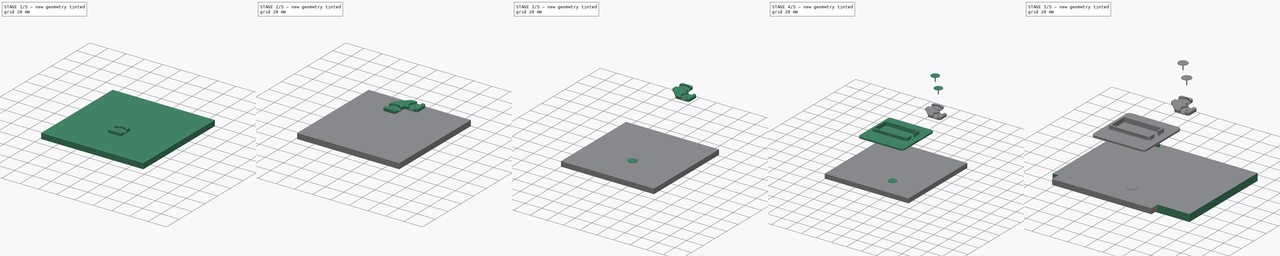
[diagram: build sequence overview — one tinted view per stage of 5, left to right]
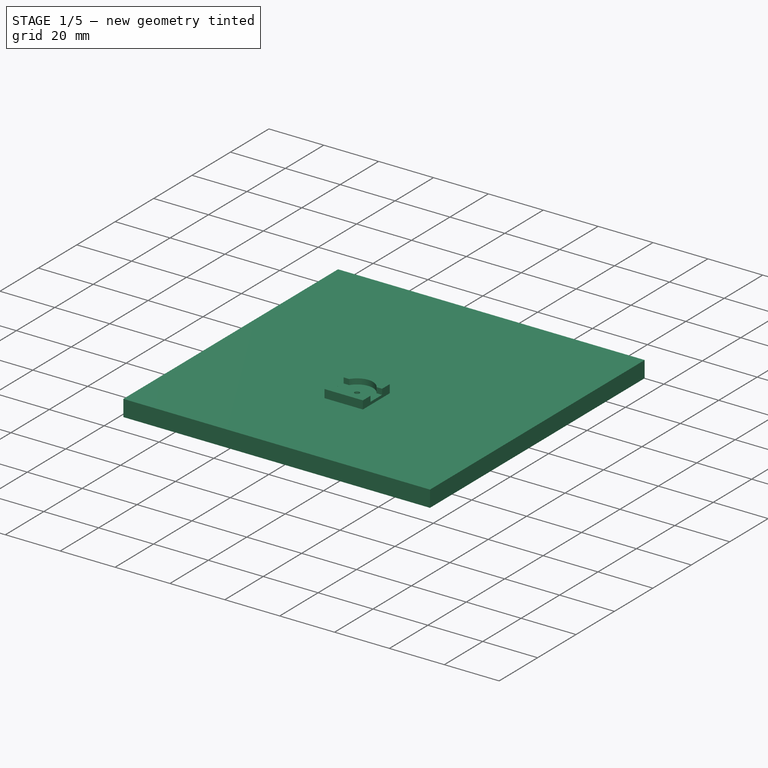
[diagram: stage 1 of 5 — iso view after this stage's code; geometry added in this stage tinted green]
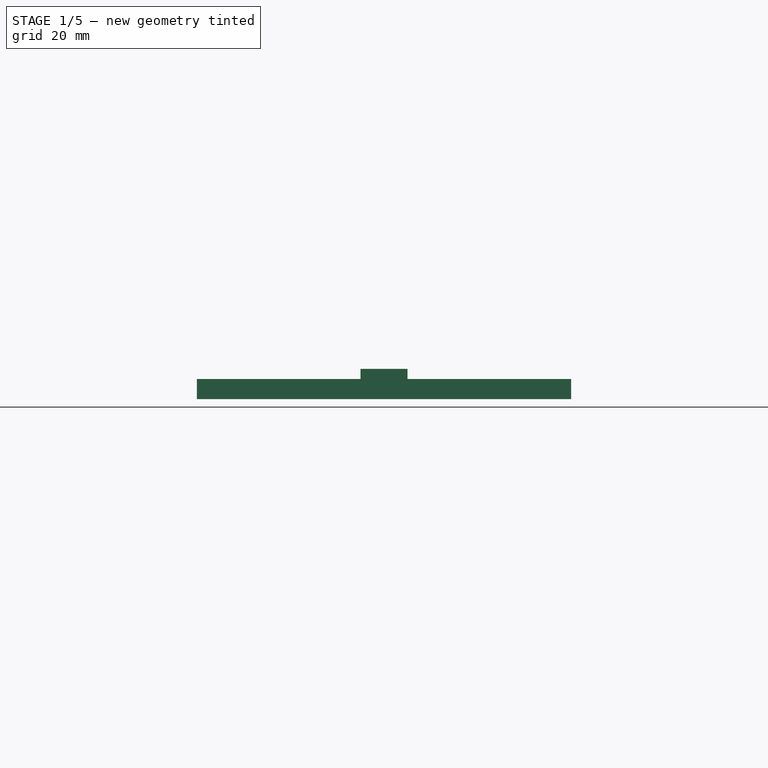
[diagram: stage 1 of 5 — front view after this stage's code; geometry added in this stage tinted green]
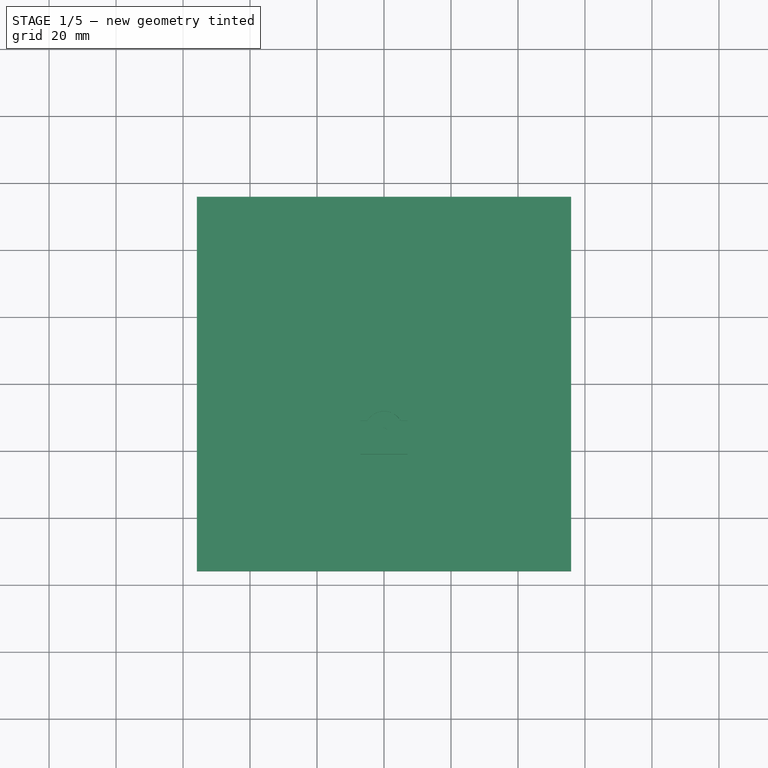
[diagram: stage 1 of 5 — top view after this stage's code; geometry added in this stage tinted green]
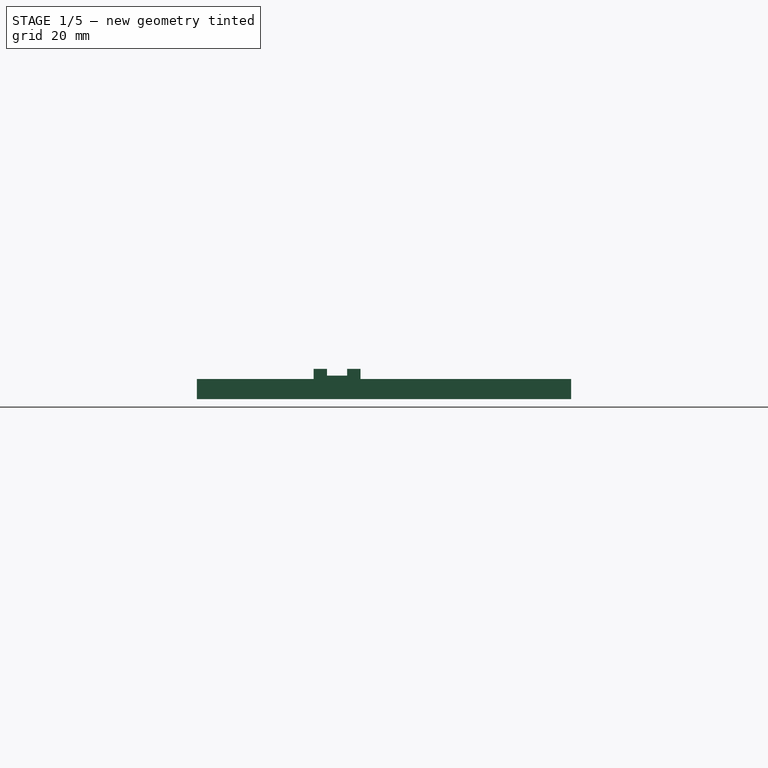
[diagram: stage 1 of 5 — right view after this stage's code; geometry added in this stage tinted green]
FCSTD DOCUMENT  (FreeCAD 0.16R6707 (Git))
Label: corner-holder
License: All rights reserved
LicenseURL: http://en.wikipedia.org/wiki/All_rights_reserved
objects: Part::FeaturePython×17, Part::Part2DObjectPython×12, App::DocumentObjectGroup×9, Sketcher::SketchObject×7, Part::Feature×5, PartDesign::Pad×4, App::Annotation×4, PartDesign::Pocket×3, Part::MultiFuse×2, Part::Fillet×2, Part::Compound×1
note: 60 computed .brp shape members not serialized (recipe doc carries the construction recipe); baked Part::Feature solids carry a one-line shape summary decoded from their .brp

FEATURE [Sketcher::SketchObject] Sketch006  label="pp-unit-body-sketch"
  sketch-geometry (4):
    g0: LineSegment StartX=-7 StartY=7 StartZ=0 EndX=7 EndY=7 EndZ=0
    g1: LineSegment StartX=7 StartY=7 StartZ=0 EndX=7 EndY=-7 EndZ=0
    g2: LineSegment StartX=7 StartY=-7 StartZ=0 EndX=-7 EndY=-7 EndZ=0
    g3: LineSegment StartX=-7 StartY=-7 StartZ=0 EndX=-7 EndY=7 EndZ=0
  constraints (11):
    c: Coincident(g0,g1)
    c: Coincident(g1,g2)
    c: Coincident(g2,g3)
    c: Coincident(g3,g0)
    c: Horizontal(g0)
    c: Horizontal(g2)
    c: Vertical(g1)
    c: Vertical(g3)
    c: Symmetric(g0,g1,g-1)
    c: Equal(g3,g0)
    c: DistanceX(g0,g0) = 14
FEATURE [PartDesign::Pad] Pad002  label="push-pin-unit-body"
  Length = 3
  Length2 = 100
  Sketch = -> Sketch006
  Type = 0
FEATURE [Sketcher::SketchObject] Sketch007  label="pushpin-top-cutout-sketch"
  ExternalGeometry = -> [Pad002]
  Placement = pos=(0,0,3) rot=(0,0,1;0rad)
  Support = -> Pad002 [Face6]
  sketch-geometry (8):
    g0: LineSegment StartX=-3 StartY=7 StartZ=0 EndX=-3 EndY=4.96387 EndZ=0
    g1: ArcOfCircle CenterX=0 CenterY=0 CenterZ=0 NormalX=0 NormalY=0 NormalZ=1 Radius=5.8 StartAngle=2.11442 EndAngle=4.16876
    g2: LineSegment StartX=-3 StartY=-7 StartZ=0 EndX=-3 EndY=-4.96387 EndZ=0
    g3: LineSegment StartX=-3 StartY=7 StartZ=0 EndX=3 EndY=7 EndZ=0
    g4: LineSegment StartX=3 StartY=7 StartZ=0 EndX=3 EndY=4.96387 EndZ=0
    g5: ArcOfCircle CenterX=0 CenterY=0 CenterZ=0 NormalX=0 NormalY=0 NormalZ=1 Radius=5.8 StartAngle=5.25601 EndAngle=7.31036
    g6: LineSegment StartX=3 StartY=-4.96387 StartZ=0 EndX=3 EndY=-7 EndZ=0
    g7: LineSegment StartX=3 StartY=-7 StartZ=0 EndX=-3 EndY=-7 EndZ=0
  constraints (23):
    c: Radius(g1) = 5.8
    c: Coincident(g1,g0)
    c: Coincident(g1,g-1)
    c: PointOnObject(g1,g0)
    c: Vertical(g2)
    c: Coincident(g2,g1)
    c: Coincident(g0,g3)
    c: Horizontal(g3)
    c: Coincident(g3,g4)
    c: Vertical(g4)
    c: PointOnObject(g0,g-3)
    c: DistanceX(g0,g3) = 6
    c: Symmetric(g2,g0,g-1)
    c: Symmetric(g0,g3,g-2)
    c: Coincident(g5,g-1)
    c: Coincident(g4,g5)
    c: Symmetric(g0,g4,g-2)
    c: Vertical(g6)
    c: Coincident(g6,g7)
    c: Horizontal(g7)
    c: Coincident(g7,g2)
    c: Coincident(g6,g5)
    c: Symmetric(g6,g2,g-2)
FEATURE [PartDesign::Pocket] Pocket004  label="pushpin-top-cutout"
  Length = 2
  Sketch = -> Sketch007
  Type = 0
FEATURE [Sketcher::SketchObject] Sketch008  label="pushpin-hole-sketch"
  Placement = pos=(0,0,1) rot=(0,0,1;0rad)
  Support = -> Pocket004 [Face6]
  sketch-geometry (1):
    g0: Circle CenterX=0 CenterY=0 CenterZ=0 NormalX=0 NormalY=0 NormalZ=1 Radius=0.9
  constraints (2):
    c: Coincident(g0,g-1)
    c: Radius(g0) = 0.9
FEATURE [PartDesign::Pocket] Pocket005  label="pushpin-hole"
  Length = 5
  Sketch = -> Sketch008
  Type = 1
FEATURE [App::DocumentObjectGroup] Grupo008  label="Single1"
  Group = -> [Clone001004,Compound002002002]
FEATURE [Part::FeaturePython] Clone001005  label="pushpin-unit001"  # Draft clone (typed FeaturePython)
  Objects = -> [Pocket005]
  Placement = pos=(14,0,0) rot=(0,0,1;0rad)
  Scale = (1,1,1)
FEATURE [Part::FeaturePython] Clone001007  label="pushpin-unit003"  # Draft clone (typed FeaturePython)
  Objects = -> [Clone001005]
  Placement = pos=(0,-14,0) rot=(0,0,1;1.5708rad)
  Scale = (1,1,1)
FEATURE [Sketcher::SketchObject] Sketch011  label="board-sketch"
  Placement = pos=(0,0,-6) rot=(0,0,1;0rad)
  sketch-geometry (4):
    g0: LineSegment StartX=-55.8818 StartY=55.8818 StartZ=0 EndX=55.8818 EndY=55.8818 EndZ=0
    g1: LineSegment StartX=55.8818 StartY=55.8818 StartZ=0 EndX=55.8818 EndY=-55.8818 EndZ=0
    g2: LineSegment StartX=55.8818 StartY=-55.8818 StartZ=0 EndX=-55.8818 EndY=-55.8818 EndZ=0
    g3: LineSegment StartX=-55.8818 StartY=-55.8818 StartZ=0 EndX=-55.8818 EndY=55.8818 EndZ=0
  constraints (10):
    c: Coincident(g0,g1)
    c: Coincident(g1,g2)
    c: Coincident(g2,g3)
    c: Coincident(g3,g0)
    c: Horizontal(g0)
    c: Horizontal(g2)
    c: Vertical(g1)
    c: Vertical(g3)
    c: Symmetric(g0,g1,g-1)
    c: Equal(g3,g0)
FEATURE [PartDesign::Pad] Pad004  label="board001"
  Length = 6
  Length2 = 100
  Placement = pos=(0,0,-6) rot=(0,0,1;0rad)
  Sketch = -> Sketch011
  Type = 0
FEATURE [Part::Part2DObjectPython] Line  # Draft 2D object (typed FeaturePython)
  ChamferSize = 0
  Closed = false
  End = (25,39,0)
  FilletRadius = 0
  Length = 95.2
  MakeFace = true
  Points = (2) [(25,39,95.2),(25,39,0)]
  Start = (25,39,95.2)
  Subdivisions = 0
FEATURE [Part::Part2DObjectPython] Line001  # Draft 2D object (typed FeaturePython)
  ChamferSize = 0
  Closed = false
  End = (39,25,0)
  FilletRadius = 0
  Length = 89.2001
  MakeFace = true
  Points = (2) [(39.1,25,89.2),(39,25,0)]
  Start = (39.1,25,89.2)
  Subdivisions = 0
FEATURE [Part::Part2DObjectPython] Line002  # Draft 2D object (typed FeaturePython)
  ChamferSize = 0
  Closed = false
  End = (24,24,42)
  FilletRadius = 0
  Length = 24
  MakeFace = true
  Points = (2) [(24,24,66),(24,24,42)]
  Start = (24,24,66)
  Subdivisions = 0
  Support = -> Clone001018
FEATURE [Part::Part2DObjectPython] Line004  # Draft 2D object (typed FeaturePython)
  ChamferSize = 0
  Closed = false
  End = (0,0,42)
  FilletRadius = 0
  Length = 42
  MakeFace = true
  Points = (2) [(-4.44089e-16,0,0),(0,0,42)]
  Start = (0,0,0)
  Subdivisions = 0
  Support = -> Pad004
FEATURE [Part::Part2DObjectPython] DWire  # Draft 2D object (typed FeaturePython)
  ChamferSize = 0
  Closed = false
  End = (91,0,10)
  FilletRadius = 0
  Length = 35.0416
  MakeFace = true
  Placement = pos=(21,0,21) rot=(0,0,1;0rad)
  Points = (3) [(39,0,-20),(62,0,-20),(70,0,-11)]
  Start = (60,0,1)
  Subdivisions = 0
FEATURE [App::Annotation] Text
  LabelText = 4
  Position = (92.006,0,12.5015)
FEATURE [Part::Part2DObjectPython] Circle  # Draft 2D object (typed FeaturePython)
  FirstAngle = 0
  LastAngle = 0
  MakeFace = false
  Placement = pos=(95,0,16) rot=(1,0,0;1.5708rad)
  Radius = 7.2111
FEATURE [App::Annotation] Text001
  LabelText = 3
  Position = (-54.4955,0,55)
FEATURE [Part::Part2DObjectPython] Circle001  # Draft 2D object (typed FeaturePython)
  FirstAngle = 0
  LastAngle = 0
  MakeFace = false
  Placement = pos=(-52,0,58) rot=(1,0,0;1.5708rad)
  Radius = 7.2111
FEATURE [Part::Part2DObjectPython] DWire001  # Draft 2D object (typed FeaturePython)
  ChamferSize = 0
  Closed = false
  End = (-49.392,0,50.6632)
  FilletRadius = 0
  Length = 23.713
  MakeFace = true
  Points = (3) [(-31,0,42),(-45,0,42),(-49.392,0,50.6632)]
  Start = (-31,0,42)
  Subdivisions = 0
FEATURE [Part::Part2DObjectPython] Circle002  # Draft 2D object (typed FeaturePython)
  FirstAngle = 0
  LastAngle = 0
  MakeFace = false
  Placement = pos=(-8,32,79) rot=(1,0,0;1.5708rad)
  Radius = 7.2111
FEATURE [App::Annotation] Text002
  LabelText = 2
  Position = (-10.4955,32,75.5015)
FEATURE [Part::Part2DObjectPython] DWire002  # Draft 2D object (typed FeaturePython)
  ChamferSize = 0
  Closed = false
  End = (-5.39205,32,71.6632)
  FilletRadius = 0
  Length = 23.713
  MakeFace = true
  Placement = pos=(44,32,21) rot=(0,0,1;0rad)
  Points = (3) [(-31,0,42),(-45,0,42),(-49.392,0,50.6632)]
  Start = (13,32,63)
  Subdivisions = 0
FEATURE [Part::Part2DObjectPython] Circle003  # Draft 2D object (typed FeaturePython)
  FirstAngle = 0
  LastAngle = 0
  MakeFace = false
  Placement = pos=(-6.56213,39,118.325) rot=(1,0,0;1.5708rad)
  Radius = 7.2111
FEATURE [App::Annotation] Text003
  LabelText = 1
  Position = (-7.56213,39,115.325)
FEATURE [Part::Part2DObjectPython] DWire003  # Draft 2D object (typed FeaturePython)
  ChamferSize = 0
  Closed = false
  End = (-3.95418,39,110.988)
  FilletRadius = 0
  Length = 23.713
  MakeFace = true
  Placement = pos=(45.4379,39,60.3246) rot=(0,0,1;0rad)
  Points = (3) [(-31,0,42),(-45,0,42),(-49.392,0,50.6632)]
  Start = (14.4379,39,102.325)
  Subdivisions = 0
FEATURE [App::DocumentObjectGroup] Grupo015  label="Exploded-view"
  Group = -> [Pad004,Clone001017,Clone001018,Clone001019,Clone001020,Line,Line001,Line002,Line004,DWire,Text,Circle,Text001,Circle001,DWire001,Circle002,Text002,DWire002,Circle003,Text003,DWire003]
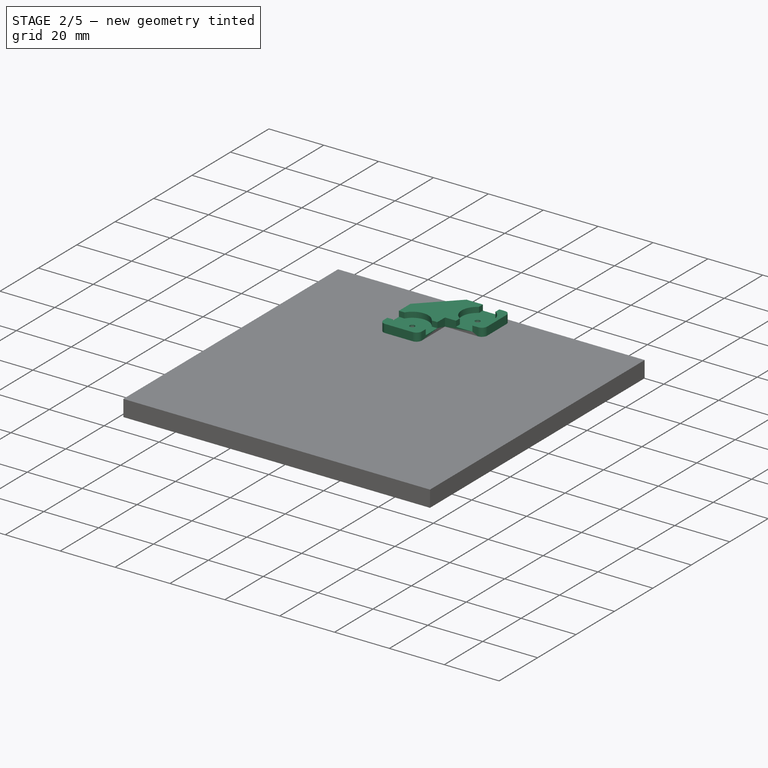
[diagram: stage 2 of 5 — iso view after this stage's code; geometry added in this stage tinted green]
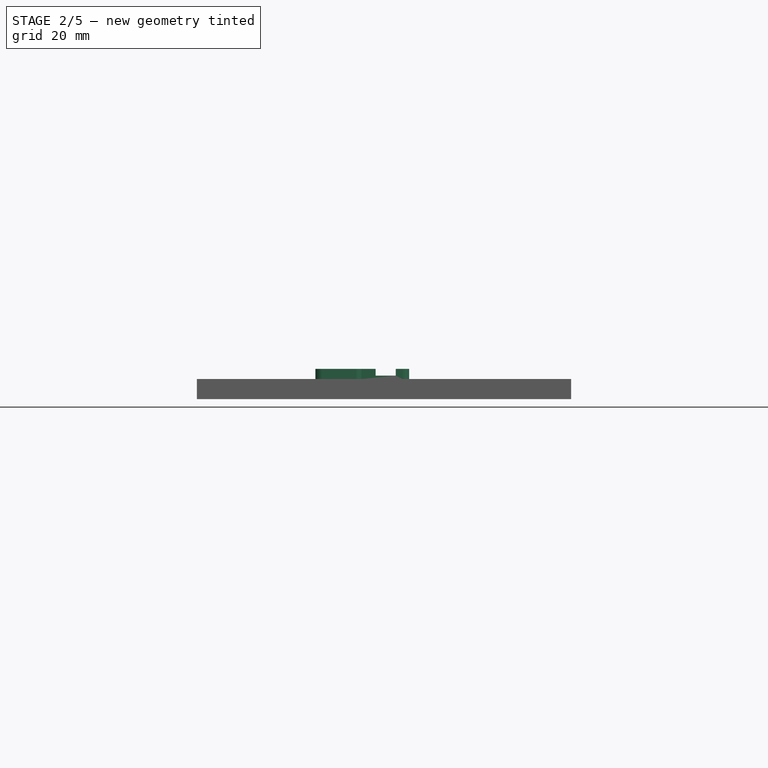
[diagram: stage 2 of 5 — front view after this stage's code; geometry added in this stage tinted green]
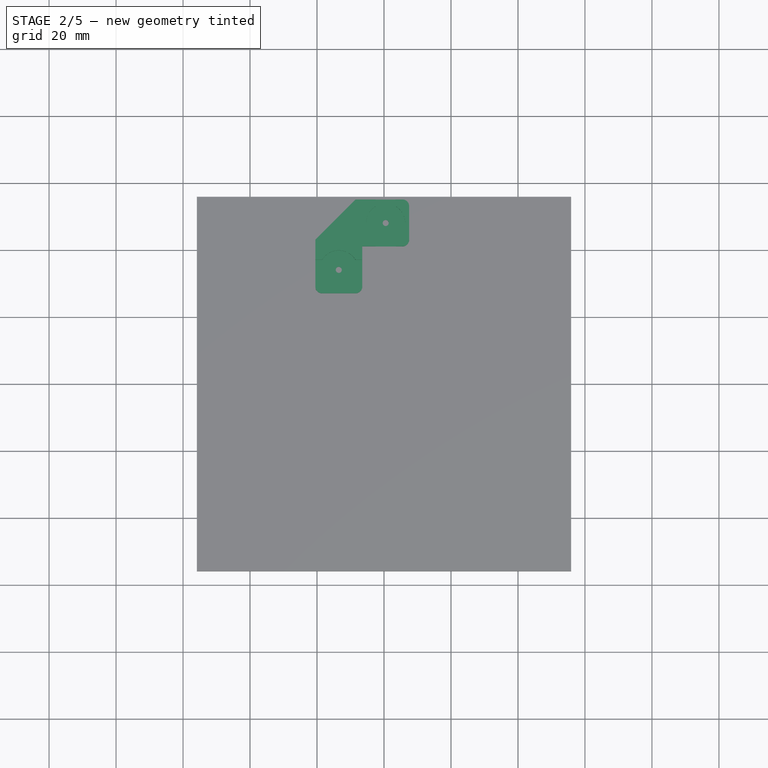
[diagram: stage 2 of 5 — top view after this stage's code; geometry added in this stage tinted green]
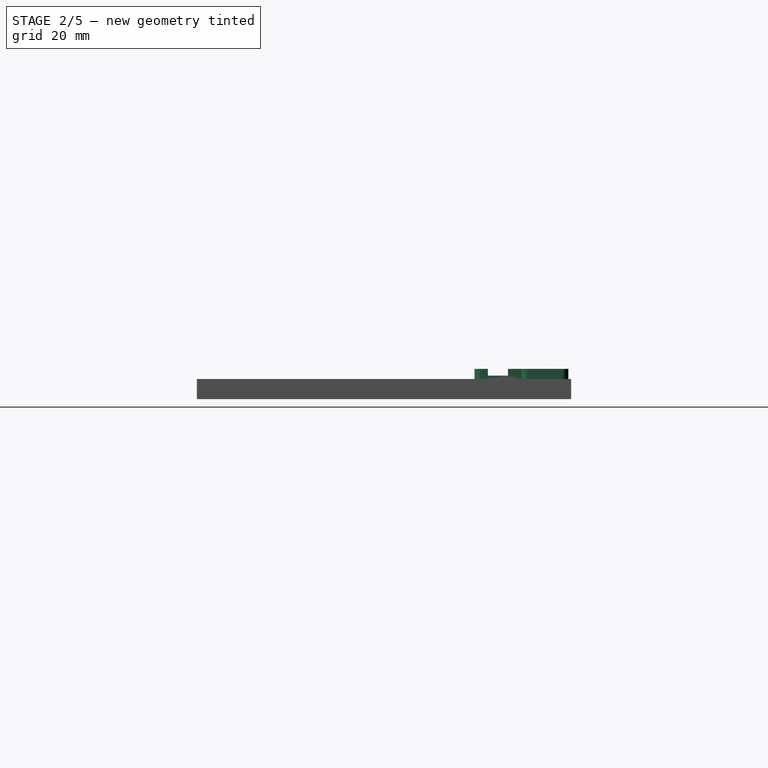
[diagram: stage 2 of 5 — right view after this stage's code; geometry added in this stage tinted green]
FEATURE [Sketcher::SketchObject] Sketch  label="push-pin-corner-body-sketch"
  sketch-geometry (7):
    g0: LineSegment StartX=-7 StartY=-7 StartZ=0 EndX=-7 EndY=7 EndZ=0
    g1: LineSegment StartX=-7 StartY=7 StartZ=0 EndX=7 EndY=7 EndZ=0
    g2: LineSegment StartX=7 StartY=7 StartZ=0 EndX=7 EndY=5 EndZ=0
    g3: LineSegment [constr] StartX=7 StartY=5 StartZ=0 EndX=-5 EndY=5 EndZ=0
    g4: LineSegment [constr] StartX=-5 StartY=5 StartZ=0 EndX=-5 EndY=-7 EndZ=0
    g5: LineSegment StartX=-5 StartY=-7 StartZ=0 EndX=-7 EndY=-7 EndZ=0
    g6: LineSegment StartX=-5 StartY=-7 StartZ=0 EndX=7 EndY=5 EndZ=0
  constraints (20):
    c: Vertical(g0)
    c: Coincident(g0,g1)
    c: Horizontal(g1)
    c: Coincident(g1,g2)
    c: Coincident(g2,g3)
    c: Horizontal(g3)
    c: Coincident(g3,g4)
    c: Vertical(g4)
    c: Coincident(g4,g5)
    c: Coincident(g5,g0)
    c: Horizontal(g5)
    c: Vertical(g2)
    c: Equal(g0,g1)
    c: Equal(g5,g2)
    c: Symmetric(g0,g1,g-2)
    c: Symmetric(g0,g0,g-1)
    c: DistanceY(g0,g0) = 14
    c: DistanceX(g5,g5) = 2
    c: Coincident(g6,g4)
    c: Coincident(g6,g2)
FEATURE [PartDesign::Pad] Pad  label="push-pin-corner-body"
  Length = 3
  Length2 = 100
  Sketch = -> Sketch
  Type = 0
FEATURE [Sketcher::SketchObject] Sketch010  label="push-pin-corner-cutout-sketch"
  ExternalGeometry = -> [Pad]
  Placement = pos=(0,0,0) rot=(1,0,0;3.14159rad)
  Support = -> Pad [Face6]
  sketch-geometry (4):
    g0: LineSegment StartX=-5 StartY=7 StartZ=0 EndX=7 EndY=7 EndZ=0
    g1: LineSegment StartX=7 StartY=7 StartZ=0 EndX=7 EndY=-5 EndZ=0
    g2: LineSegment StartX=7 StartY=-5 StartZ=0 EndX=-5 EndY=-5 EndZ=0
    g3: LineSegment StartX=-5 StartY=-5 StartZ=0 EndX=-5 EndY=7 EndZ=0
  constraints (10):
    c: Coincident(g0,g1)
    c: Coincident(g1,g2)
    c: Coincident(g2,g3)
    c: Coincident(g3,g0)
    c: Horizontal(g0)
    c: Horizontal(g2)
    c: Vertical(g1)
    c: Vertical(g3)
    c: Coincident(g0,g-3)
    c: Coincident(g1,g-4)
FEATURE [PartDesign::Pocket] Pocket  label="push-pin-corner-cutout"
  Length = 2
  Sketch = -> Sketch010
  Type = 0
FEATURE [Part::FeaturePython] Clone001006  label="pushpin-unit002"  # Draft clone (typed FeaturePython)
  Objects = -> [Pocket]
  Placement = pos=(0,0,0) rot=(0,0,1;3.14159rad)
  Scale = (1,1,1)
FEATURE [Part::MultiFuse] Fusion001  label="corner-holder-double-fusion"
  Shapes = -> [Clone001005,Clone001007,Clone001006]
FEATURE [Part::Fillet] Fillet001  label="corner-holder-double-rounded"
  Base = -> Fusion001
  Edges = 4 edges r=2: [Edge13,Edge14,Edge24,Edge30]
FEATURE [App::DocumentObjectGroup] Grupo013  label="src-corner-holder-double"
  Group = -> [Fusion001,Fillet001]
FEATURE [Part::FeaturePython] Clone001008  label="corner-holder-double"  # Draft clone (typed FeaturePython)
  Objects = -> [Fillet001]
  Placement = pos=(-13.4976,48.0332,0) rot=(0,0,1;0rad)
  Scale = (1,1,1)
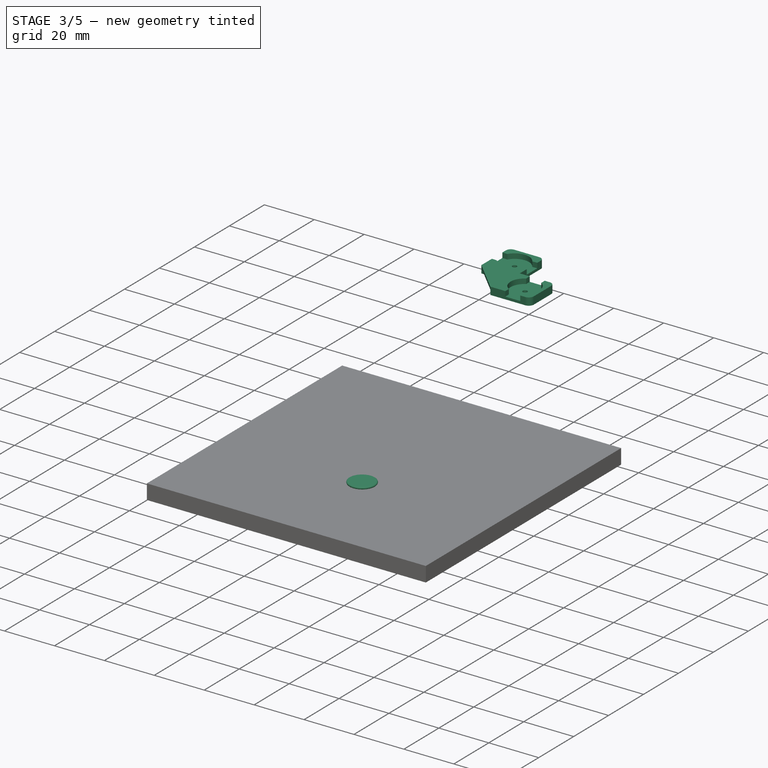
[diagram: stage 3 of 5 — iso view after this stage's code; geometry added in this stage tinted green]
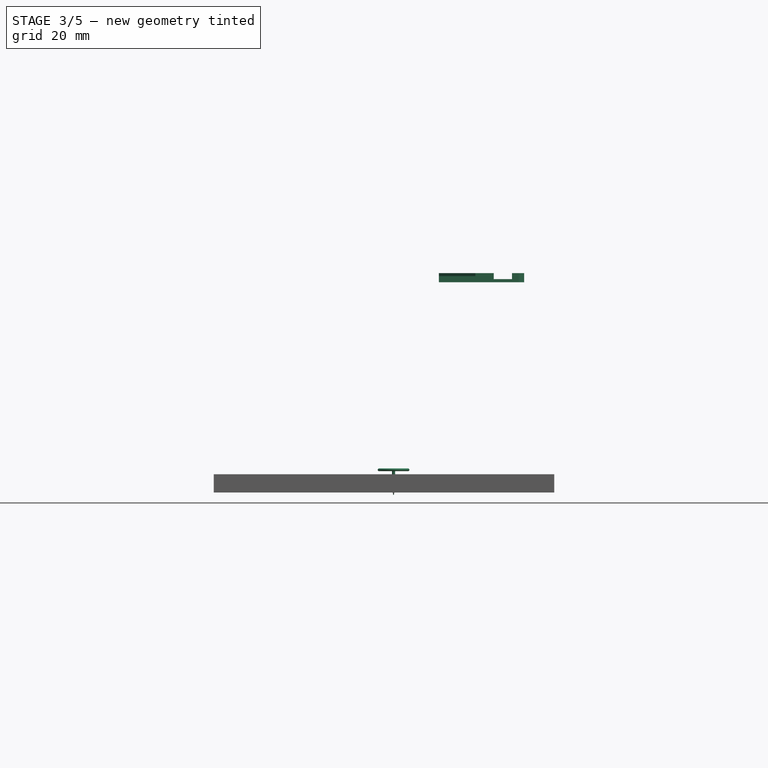
[diagram: stage 3 of 5 — front view after this stage's code; geometry added in this stage tinted green]
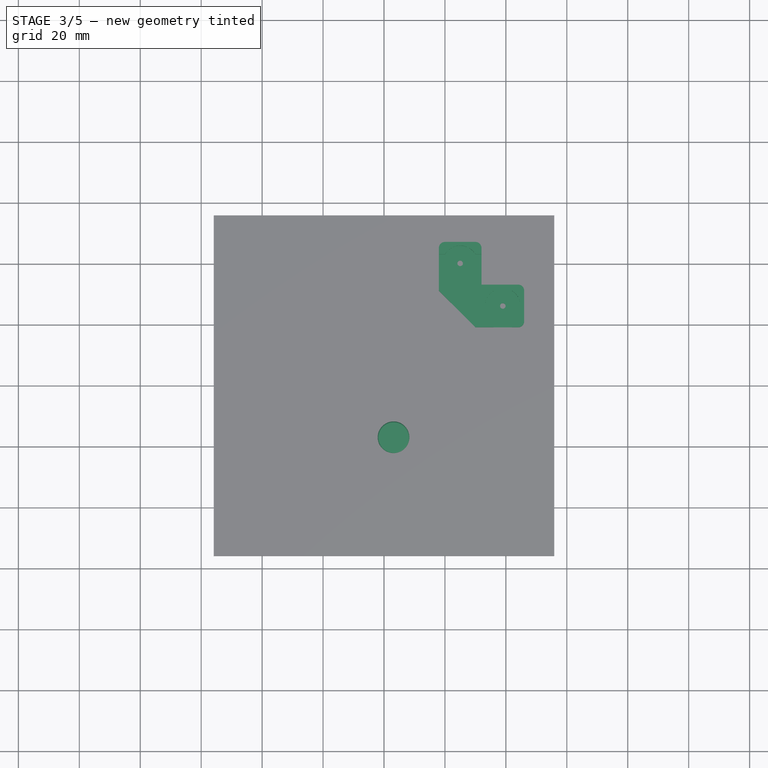
[diagram: stage 3 of 5 — top view after this stage's code; geometry added in this stage tinted green]
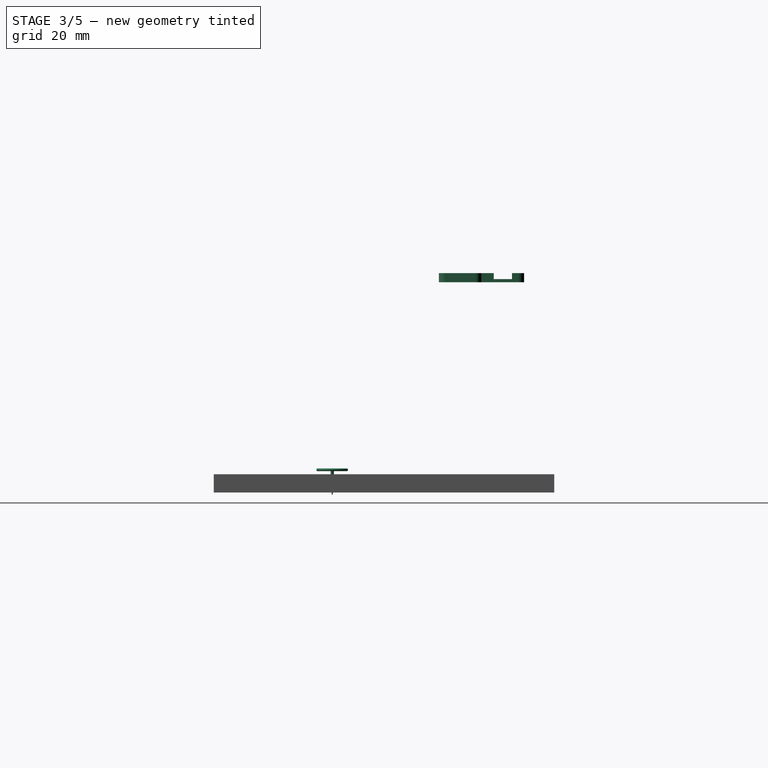
[diagram: stage 3 of 5 — right view after this stage's code; geometry added in this stage tinted green]
FEATURE [App::DocumentObjectGroup] Grupo003  label="src-pushpin-units"
  Group = -> [Pad002,Pocket004,Pocket005]
FEATURE [Part::Feature] Compound002002004  label="pushpin-2"
  Placement = pos=(-13.4976,34.0332,1) rot=(0,0,1;0rad)
  shape: bbox 9.1 x 9.1 x 22.45 mm, 12 faces, 2 solids (baked)
FEATURE [Part::Feature] Compound002002002  label="Pushpin-1"
  Placement = pos=(-35.6487,51.7555,1.3) rot=(0,0,1;0rad)
  shape: bbox 11.26 x 11.26 x 8.7 mm, 14 faces, 2 solids (baked)
FEATURE [Part::Feature] Clone001001  label="cover001"
  Placement = pos=(0,0,0) rot=(1,0,0;1.5708rad)
  shape: bbox 11.26 x 11.26 x 0.9 mm, 7 faces (baked)
FEATURE [Part::Feature] Clone001002  label="Pushpin-body001"
  shape: bbox 9.55 x 9.55 x 8.4 mm, 7 faces (baked)
FEATURE [Part::Compound] Compound  label="white-Pushpin"
  Links = -> [Clone001001,Clone001002]
  Placement = pos=(0.502392,48.0332,1.3) rot=(0,0,1;0rad)
FEATURE [App::DocumentObjectGroup] Grupo010  label="double"
  Group = -> [Compound,Clone001008,Compound002002004]
FEATURE [Part::Feature] Part__Feature  label="servo-support"
  Placement = pos=(42.1313,8.00407,2) rot=(0,0,1;0rad)
  shape: bbox 60 x 60 x 7 mm, 36 faces (baked)
FEATURE [Part::FeaturePython] Clone001009  label="corner-holder-double001"  # Draft clone (typed FeaturePython)
  Objects = -> [Clone001008]
  Placement = pos=(17.1324,-16.997,0) rot=(0,0,-1;1.5708rad)
  Scale = (1,1,1)
FEATURE [Part::FeaturePython] Clone001012  label="corner-holder-double002"  # Draft clone (typed FeaturePython)
  Objects = -> [Clone001009]
  Placement = pos=(67.1313,33.0041,0) rot=(0,0,1;1.5708rad)
  Scale = (1,1,1)
FEATURE [Part::FeaturePython] Clone001013  label="white-Pushpin001"  # Draft clone (typed FeaturePython)
  Objects = -> [Compound]
  Placement = pos=(3.13237,-16.997,1.3) rot=(0,0,1;0rad)
  Scale = (1,1,1)
FEATURE [Part::FeaturePython] Clone001018  label="Clone of corner-holder-double002"  # Draft clone (typed FeaturePython)
  Objects = -> [Clone001012]
  Placement = pos=(25,25,63) rot=(0,0,1;1.5708rad)
  Scale = (1,1,1)
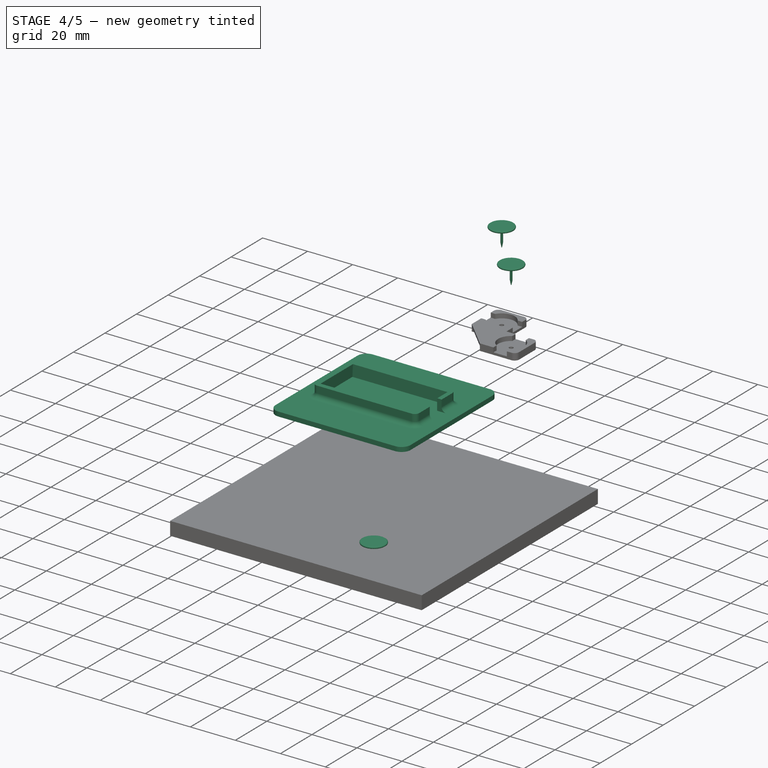
[diagram: stage 4 of 5 — iso view after this stage's code; geometry added in this stage tinted green]
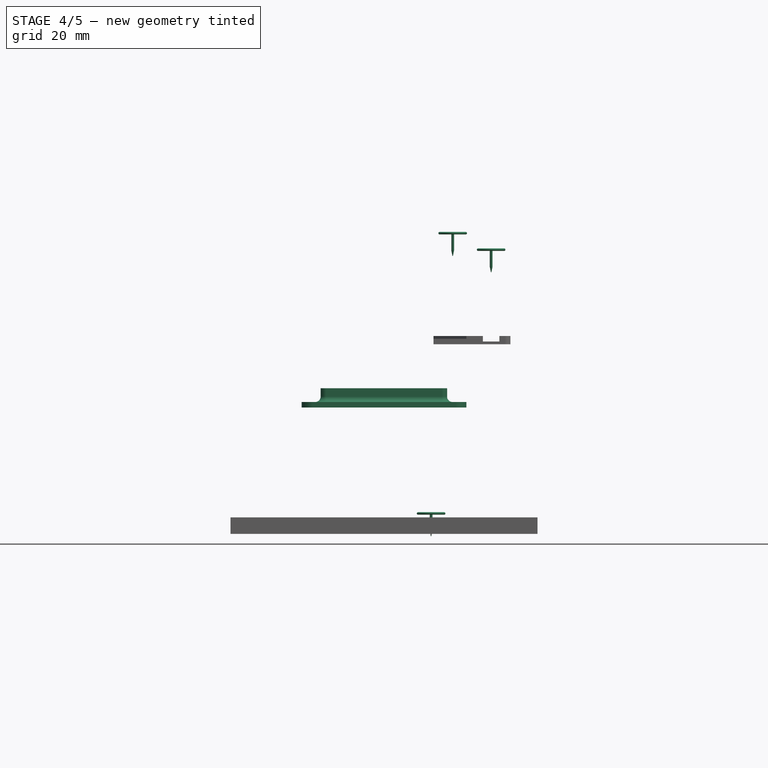
[diagram: stage 4 of 5 — front view after this stage's code; geometry added in this stage tinted green]
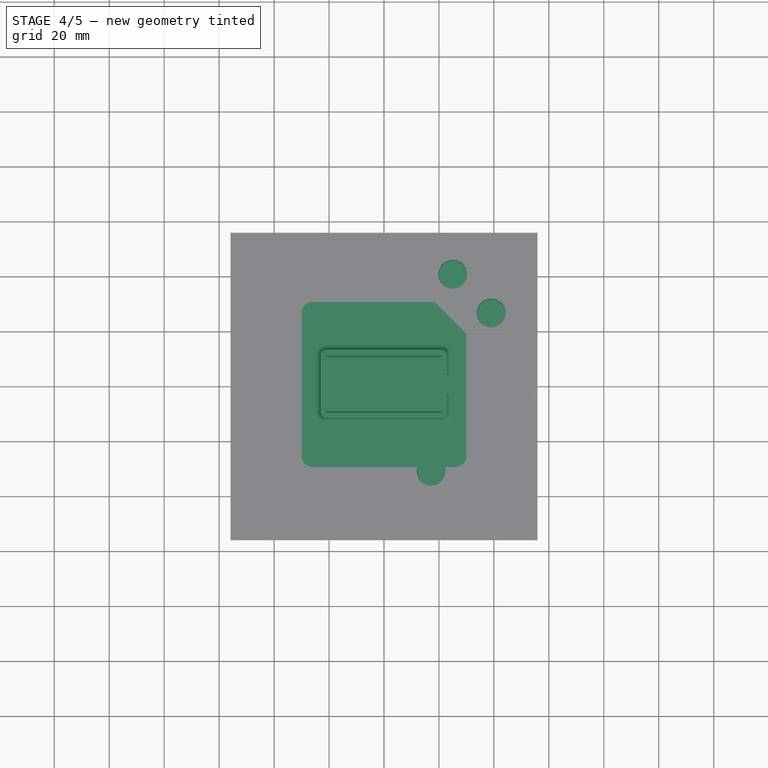
[diagram: stage 4 of 5 — top view after this stage's code; geometry added in this stage tinted green]
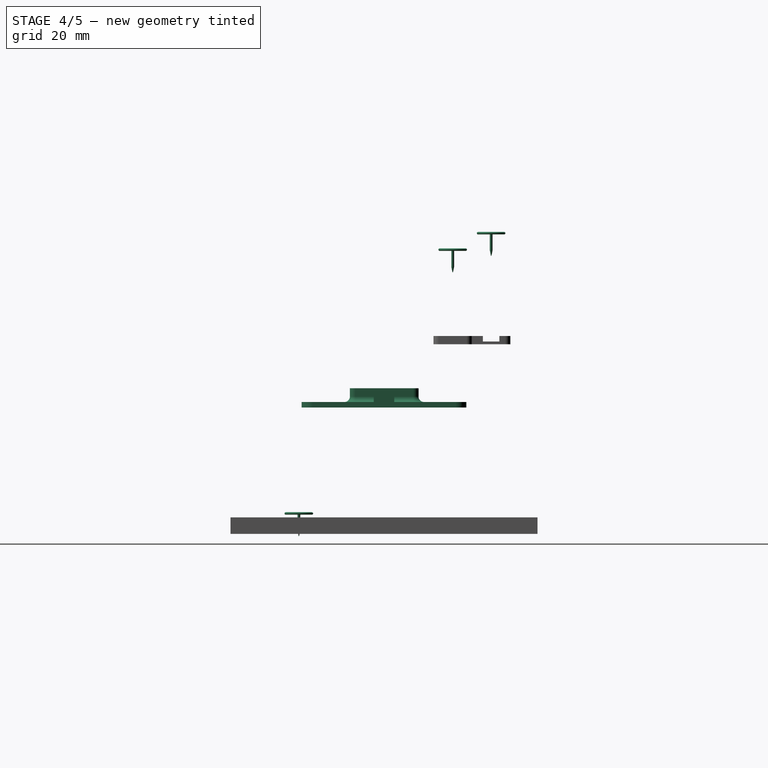
[diagram: stage 4 of 5 — right view after this stage's code; geometry added in this stage tinted green]
FEATURE [Part::FeaturePython] Clone001014  label="white-Pushpin002"  # Draft clone (typed FeaturePython)
  Objects = -> [Clone001013]
  Placement = pos=(67.1313,47.0041,1.3) rot=(0,0,1;0rad)
  Scale = (1,1,1)
FEATURE [Part::FeaturePython] Clone001015  label="Pushpin-002"  # Draft clone (typed FeaturePython)
  Objects = -> [Compound002002002]
  Placement = pos=(17.1324,-30.997,1.3) rot=(0,0,1;0rad)
  Scale = (1,1,1)
FEATURE [Part::FeaturePython] Clone001016  label="Pushpin-003"  # Draft clone (typed FeaturePython)
  Objects = -> [Clone001014]
  Placement = pos=(81.1313,33.0041,1.3) rot=(0,0,1;0rad)
  Scale = (1,1,1)
FEATURE [App::DocumentObjectGroup] Grupo014  label="Servo-example"
  Group = -> [Part__Feature,Clone001009,Clone001012,Clone001013,Clone001014,Clone001015,Clone001016]
FEATURE [App::DocumentObjectGroup] Grupo  label="Assembly"
  Group = -> [Grupo008,Grupo010,Pad003,Grupo014]
FEATURE [Part::FeaturePython] Clone001017  label="Clone of servo-support"  # Draft clone (typed FeaturePython)
  Objects = -> [Part__Feature]
  Placement = pos=(1e-11,0,42) rot=(0,0,1;0rad)
  Scale = (1,1,1)
FEATURE [Part::FeaturePython] Clone001019  label="Clone of white-Pushpin002"  # Draft clone (typed FeaturePython)
  Objects = -> [Clone001014]
  Placement = pos=(25,39,103.3) rot=(0,0,1;0rad)
  Scale = (1,1,1)
FEATURE [Part::FeaturePython] Clone001020  label="Clone of Pushpin-003"  # Draft clone (typed FeaturePython)
  Objects = -> [Clone001016]
  Placement = pos=(39,25,97.3) rot=(0,0,1;0rad)
  Scale = (1,1,1)
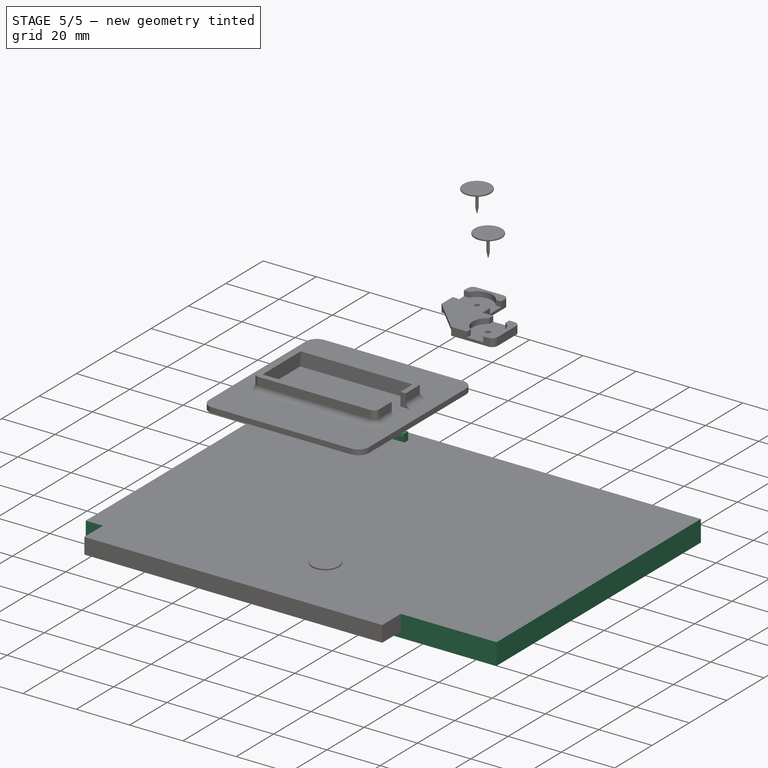
[diagram: stage 5 of 5 — iso view after this stage's code; geometry added in this stage tinted green]
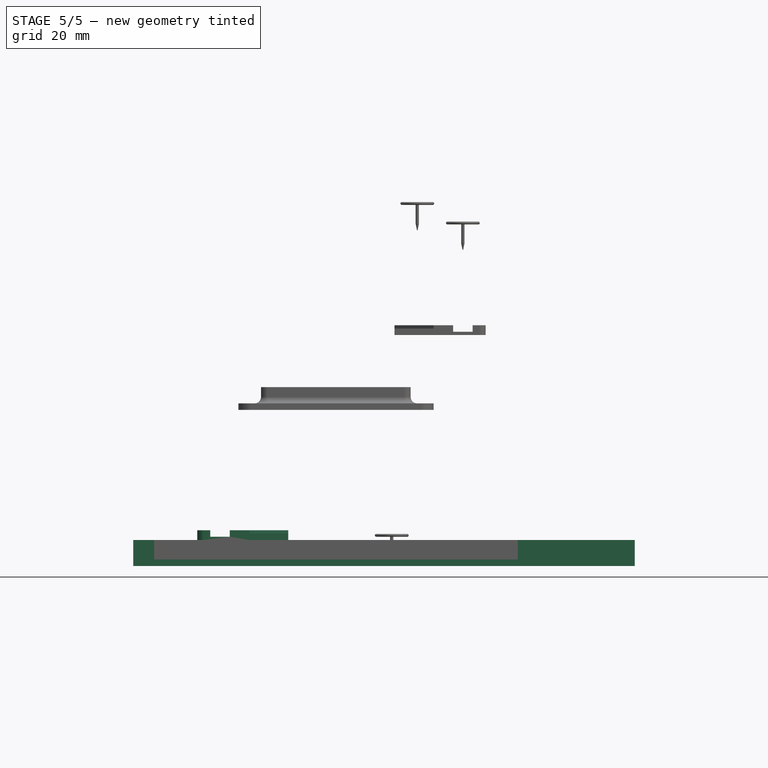
[diagram: stage 5 of 5 — front view after this stage's code; geometry added in this stage tinted green]
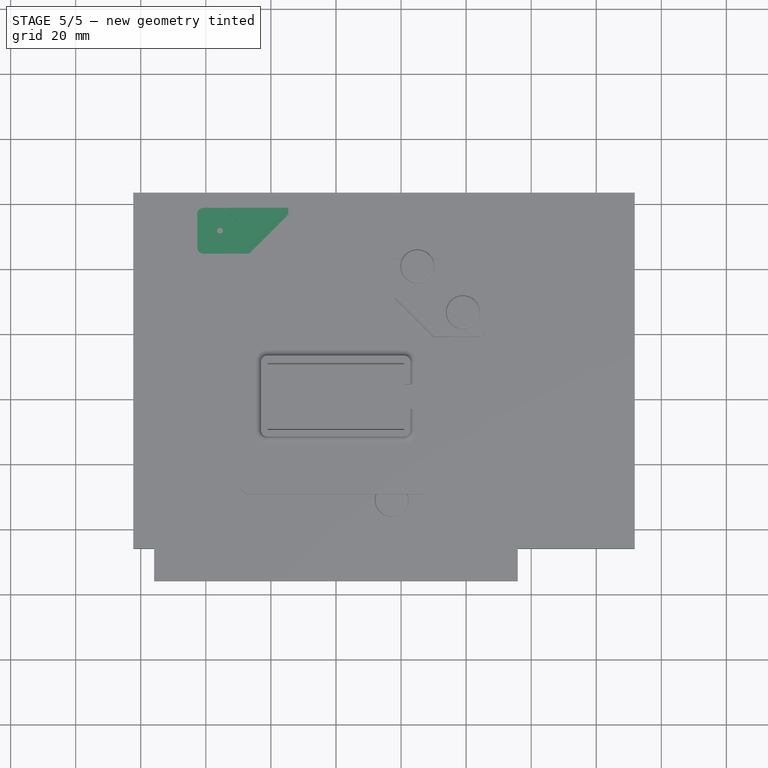
[diagram: stage 5 of 5 — top view after this stage's code; geometry added in this stage tinted green]
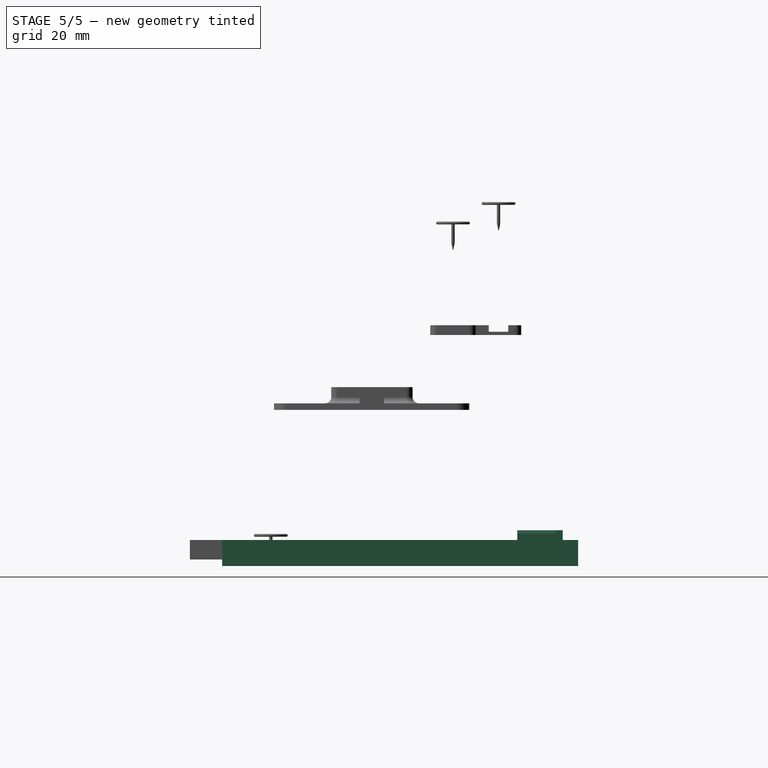
[diagram: stage 5 of 5 — right view after this stage's code; geometry added in this stage tinted green]
FEATURE [Sketcher::SketchObject] Sketch009
  Placement = pos=(0,-6,-8) rot=(0,0,1;0rad)
  sketch-geometry (4):
    g0: LineSegment StartX=-62.3239 StartY=69.4771 StartZ=0 EndX=91.8498 EndY=69.4771 EndZ=0
    g1: LineSegment StartX=91.8498 StartY=69.4771 StartZ=0 EndX=91.8498 EndY=-39.9512 EndZ=0
    g2: LineSegment StartX=91.8498 StartY=-39.9512 StartZ=0 EndX=-62.3239 EndY=-39.9512 EndZ=0
    g3: LineSegment StartX=-62.3239 StartY=-39.9512 StartZ=0 EndX=-62.3239 EndY=69.4771 EndZ=0
  constraints (8):
    c: Coincident(g0,g1)
    c: Coincident(g1,g2)
    c: Coincident(g2,g3)
    c: Coincident(g3,g0)
    c: Horizontal(g0)
    c: Horizontal(g2)
    c: Vertical(g1)
    c: Vertical(g3)
FEATURE [PartDesign::Pad] Pad003  label="board"
  Length = 8
  Length2 = 100
  Placement = pos=(0,-6,-8) rot=(0,0,1;0rad)
  Sketch = -> Sketch009
  Type = 0
FEATURE [App::DocumentObjectGroup] Grupo011  label="src-pushpin-corner-unit"
  Group = -> [Pad,Pocket]
FEATURE [Part::FeaturePython] Clone  label="corner-holder-unit"  # Draft clone (typed FeaturePython)
  Objects = -> [Pocket]
  Placement = pos=(14,0,0) rot=(0,0,1;0rad)
  Scale = (1,1,1)
FEATURE [Part::FeaturePython] Clone001003  label="pushpin-unit"  # Draft clone (typed FeaturePython)
  Objects = -> [Pocket005]
  Scale = (1,1,1)
FEATURE [Part::MultiFuse] Fusion  label="pushpin-corner-holder"
  Shapes = -> [Clone,Clone001003]
FEATURE [Part::Fillet] Fillet  label="pushpin-corner-holder-rounded"
  Base = -> Fusion
  Edges = 2 edges r=2: [Edge1,Edge2]
FEATURE [App::DocumentObjectGroup] Grupo012  label="src-corner-holder-single"
  Group = -> [Fillet]
FEATURE [Part::FeaturePython] Clone001004  label="corner-holder-single"  # Draft clone (typed FeaturePython)
  Objects = -> [Fillet]
  Placement = pos=(-35.6487,51.7555,0) rot=(0,0,1;0rad)
  Scale = (1,1,1)
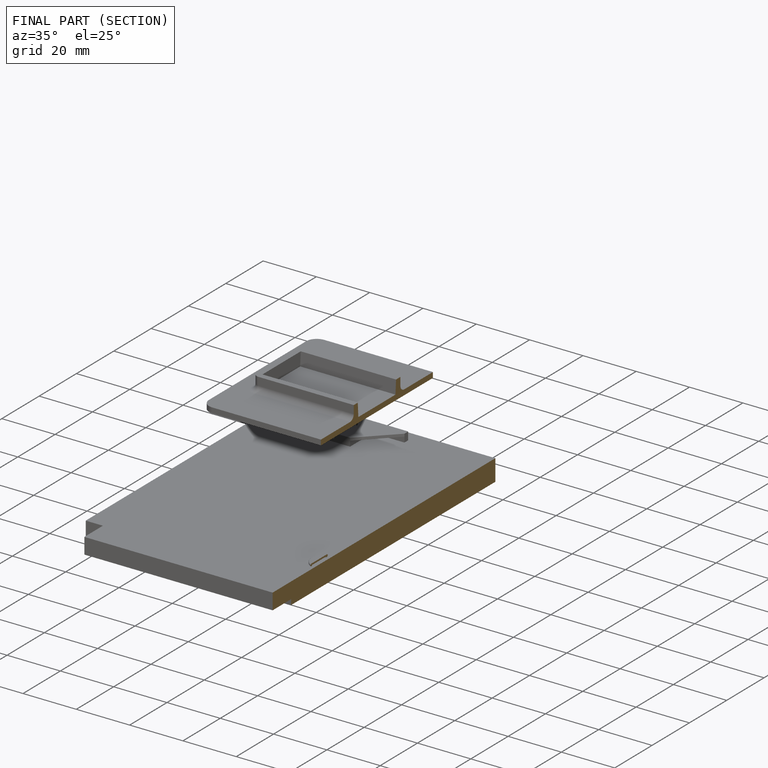
[diagram: finished part — half-section view (interior)]
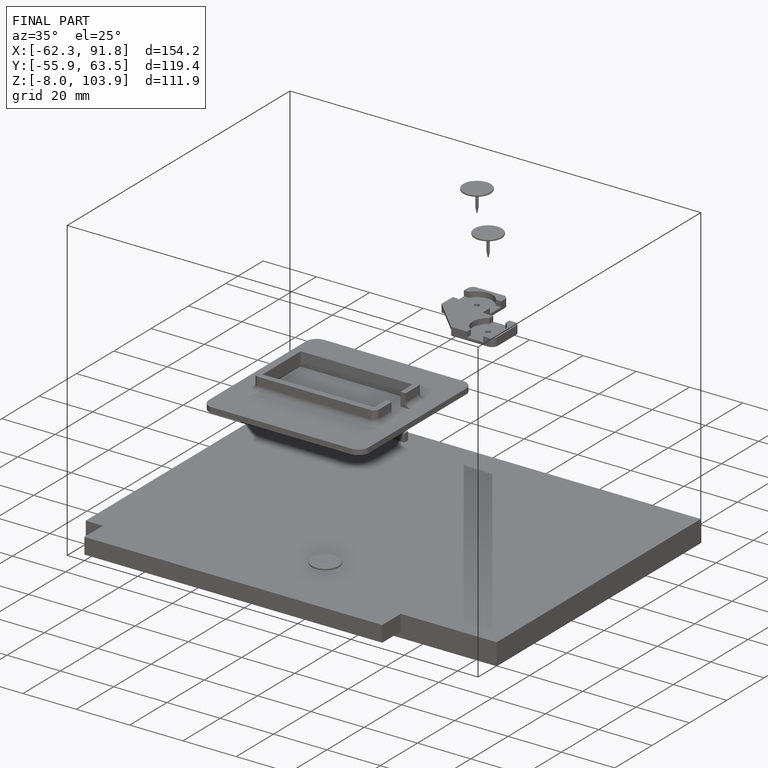
[diagram: finished part — iso view with bounding-box wireframe]
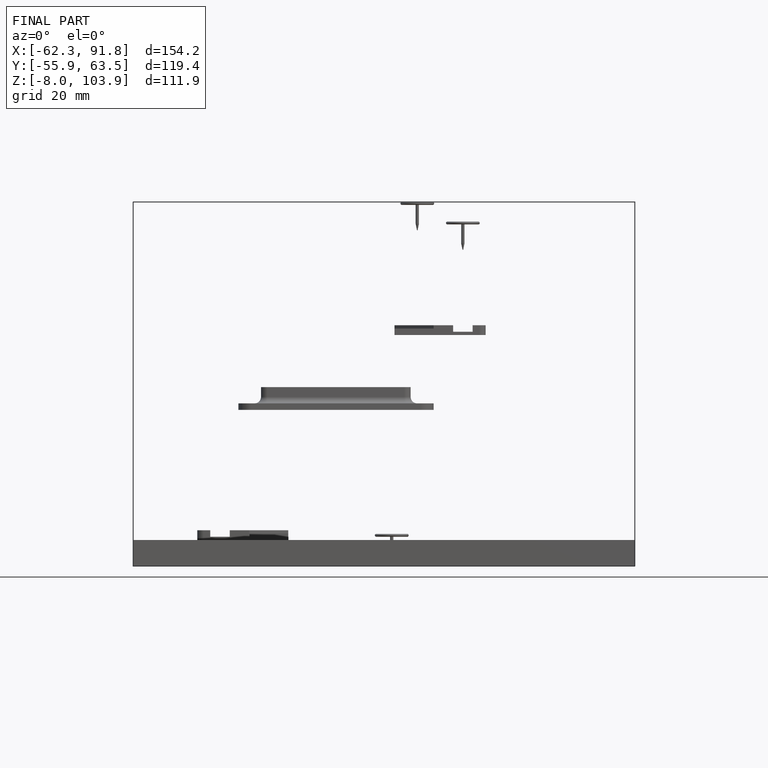
[diagram: finished part — front view with bounding-box wireframe]
